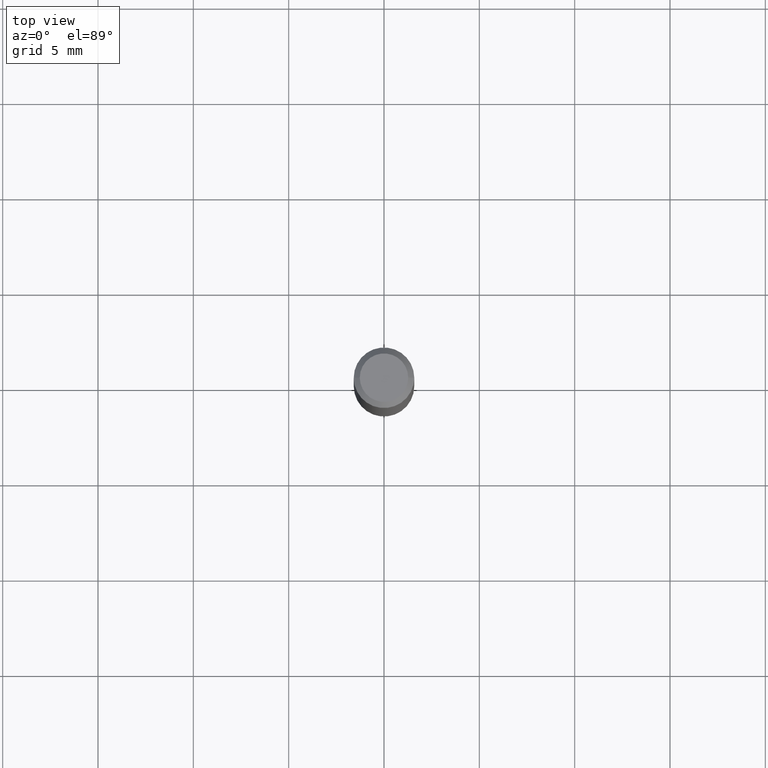
[diagram: clean part render]
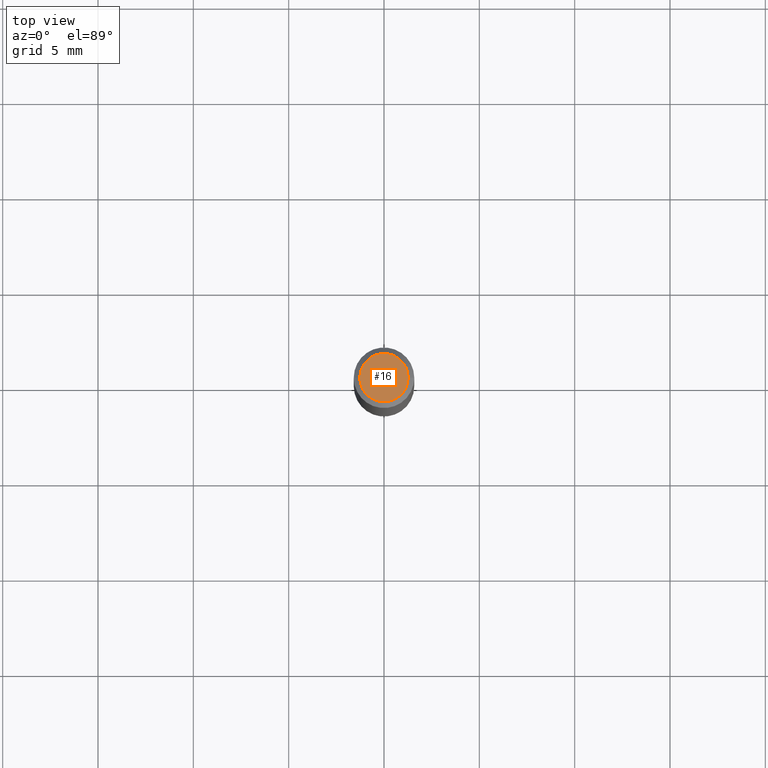
[diagram: same view with one face highlighted and labeled with its STEP entity id]
A machine part, top view. The second image highlights one B-rep face of the part: STEP entity #16.
In plain terms, the highlighted planar face has unit normal (0, -0, -1).
Its self-contained STEP definition (entity closure, byte-faithful):
#3 = DIRECTION ( 'NONE',  ( 2.438088387897960049E-29, -3.491481338843145188E-15, -1.000000000000000000 ) ) ;
#8 = AXIS2_PLACEMENT_3D ( 'NONE', #287, #250, #91 ) ;
#9 = DIRECTION ( 'NONE',  ( -1.000000000000000000, 6.982962677686265922E-15, -4.876176775795935793E-29 ) ) ;
#16 = ADVANCED_FACE ( 'NONE', ( #371 ), #34, .F. ) ;
#34 = PLANE ( 'NONE',  #221 ) ;
#76 = AXIS2_PLACEMENT_3D ( 'NONE', #227, #218, #230 ) ;
#91 = DIRECTION ( 'NONE',  ( 1.000000000000000000, -6.982962677686265922E-15, 4.875957971899673662E-29 ) ) ;
#92 = CIRCLE ( 'NONE', #76, 0.04999999999999999584 ) ;
#98 = EDGE_CURVE ( 'NONE', #203, #481, #92, .T. ) ;
#113 = EDGE_LOOP ( 'NONE', ( #326, #216 ) ) ;
#196 = CIRCLE ( 'NONE', #8, 0.04999999999999999584 ) ;
#203 = VERTEX_POINT ( 'NONE', #459 ) ;
#216 = ORIENTED_EDGE ( 'NONE', *, *, #98, .T. ) ;
#218 = DIRECTION ( 'NONE',  ( -2.445468806185136597E-29, 3.491481338843145583E-15, 1.000000000000000000 ) ) ;
#221 = AXIS2_PLACEMENT_3D ( 'NONE', #405, #3, #9 ) ;
#227 = CARTESIAN_POINT ( 'NONE',  ( 3.893286209682126177E-47, -5.558580879666067980E-33, -1.592040838891559689E-18 ) ) ;
#230 = DIRECTION ( 'NONE',  ( 1.000000000000000000, -6.982962677686265922E-15, 4.875957971899673662E-29 ) ) ;
#250 = DIRECTION ( 'NONE',  ( -2.445468806185136597E-29, 3.491481338843145583E-15, 1.000000000000000000 ) ) ;
#287 = CARTESIAN_POINT ( 'NONE',  ( 3.893286209682126177E-47, -5.558580879666067980E-33, -1.592040838891559689E-18 ) ) ;
#326 = ORIENTED_EDGE ( 'NONE', *, *, #392, .T. ) ;
#371 = FACE_OUTER_BOUND ( 'NONE', #113, .T. ) ;
#392 = EDGE_CURVE ( 'NONE', #481, #203, #196, .T. ) ;
#405 = CARTESIAN_POINT ( 'NONE',  ( 1.946643104841063088E-47, -2.779290439833033990E-33, -7.960204194457798443E-19 ) ) ;
#447 = CARTESIAN_POINT ( 'NONE',  ( -0.04999999999999999584, 3.709698922520826725E-16, -1.592040838894077649E-18 ) ) ;
#459 = CARTESIAN_POINT ( 'NONE',  ( 0.04999999999999999584, -4.077247707424184705E-16, -1.592040838888913461E-18 ) ) ;
#481 = VERTEX_POINT ( 'NONE', #447 ) ;